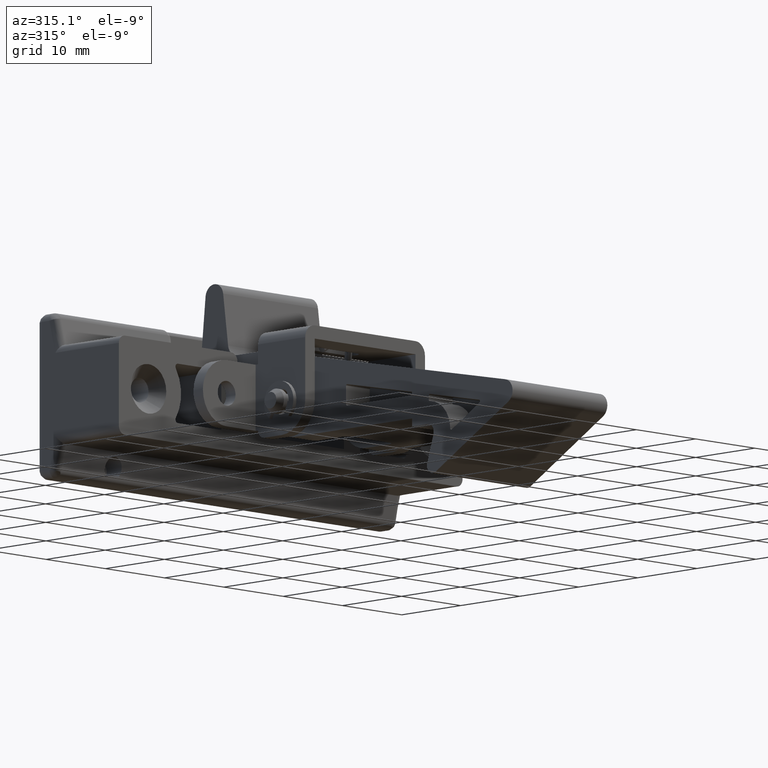
[diagram: clean part render]
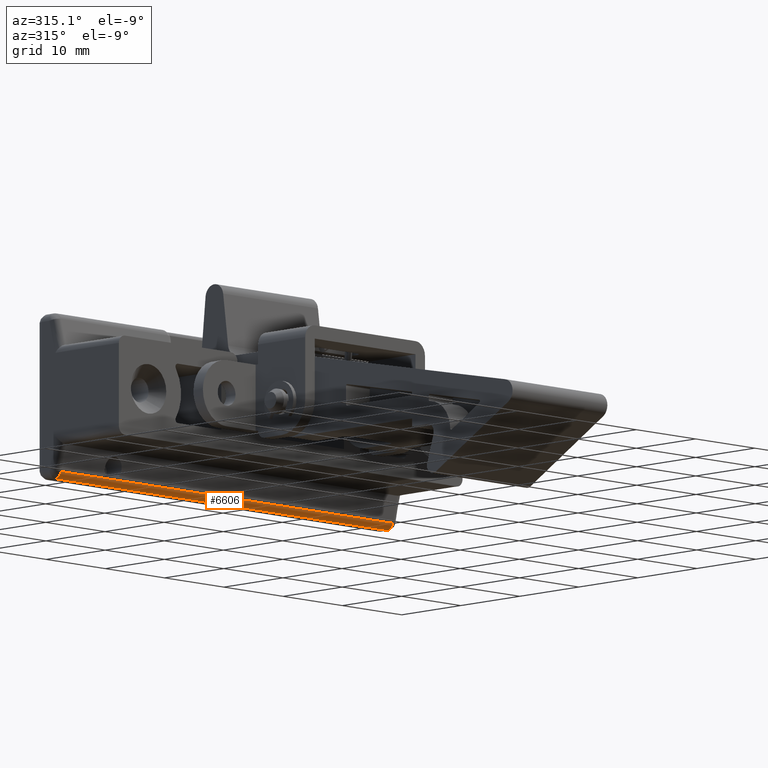
[diagram: same view with one face highlighted and labeled with its STEP entity id]
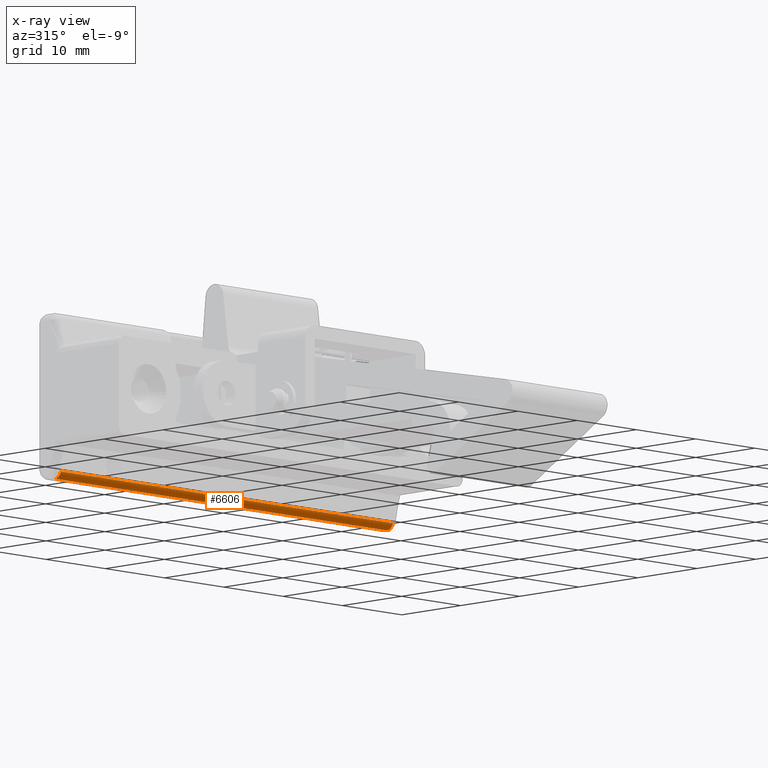
[diagram: x-ray of the same camera — body ghosted, the highlighted face saturated]
A machine part, auxiliary view. The second image highlights one B-rep face of the part: STEP entity #6606.
The next image is the same camera in x-ray: the body ghosted, the highlighted face saturated — about 0% of this face is hidden behind the body in this view.
In plain terms, the highlighted face is a freeform B-spline surface patch.
Its self-contained STEP definition (entity closure, byte-faithful):
#5752=CARTESIAN_POINT('',(28.0,20.380777980867190,-9.0));
#5753=VERTEX_POINT('',#5752);
#5759=CARTESIAN_POINT('',(-28.0,20.380777980867190,-9.0));
#5760=VERTEX_POINT('',#5759);
#5761=CARTESIAN_POINT('',(28.0,20.380777980867190,-9.0));
#5762=CARTESIAN_POINT('',(-28.0,20.380777980867190,-9.0));
#5763=QUASI_UNIFORM_CURVE('',1,(#5761,#5762),.UNSPECIFIED.,.F.,.U.);
#5764=EDGE_CURVE('',#5753,#5760,#5763,.T.);
#6406=CARTESIAN_POINT('',(-28.0,19.410635480721780,-8.242535625036220));
#6407=VERTEX_POINT('',#6406);
#6408=CARTESIAN_POINT('',(-28.0,20.380777980867190,-9.0));
#6409=CARTESIAN_POINT('',(-28.000000000000011,20.228818777914469,-9.000248056203558));
#6410=CARTESIAN_POINT('',(-28.000000000000011,19.966634051690889,-8.939014366621610));
#6411=CARTESIAN_POINT('',(-28.000000000000028,19.704862445812811,-8.751473107571282));
#6412=CARTESIAN_POINT('',(-27.999999999999961,19.517228933167729,-8.529001288167068));
#6413=CARTESIAN_POINT('',(-28.000000000000050,19.440665666647210,-8.363173478599379));
#6414=CARTESIAN_POINT('',(-28.0,19.410635480721780,-8.242535625036220));
#6415=B_SPLINE_CURVE_WITH_KNOTS('',3,(#6408,#6409,#6410,#6411,#6412,#6413,#6414),.UNSPECIFIED.,.F.,.U.,(4,1,1,1,4),(0.000000138258296,0.455795929395192,0.787246037963125,0.952994236450153,1.325912428380653),.UNSPECIFIED.);
#6416=EDGE_CURVE('',#5760,#6407,#6415,.T.);
#6571=CARTESIAN_POINT('',(29.400000000000009,19.408555925034079,-8.234060407056774));
#6572=CARTESIAN_POINT('',(-29.434999999999999,19.408555925034079,-8.234060407056774));
#6573=CARTESIAN_POINT('',(29.400000000000009,19.601500435050308,-9.035498422774289));
#6574=CARTESIAN_POINT('',(-29.434999999999995,19.601500435050308,-9.035498422774289));
#6575=CARTESIAN_POINT('',(29.400000000000009,20.425029325246609,-8.999020429481000));
#6576=CARTESIAN_POINT('',(-29.434999999999999,20.425029325246609,-8.999020429481000));
#6584=(BOUNDED_SURFACE()B_SPLINE_SURFACE(1,2,((#6571,#6573,#6575),(#6572,#6574,#6576)),.UNSPECIFIED.,.F.,.F.,.U.)B_SPLINE_SURFACE_WITH_KNOTS((2,2),(3,3),(0.0,58.835000000000008),(0.0,1.0),.UNSPECIFIED.)GEOMETRIC_REPRESENTATION_ITEM()RATIONAL_B_SPLINE_SURFACE(((1.0,0.771624583387720,1.0),(1.0,0.771624583387720,1.0)))REPRESENTATION_ITEM('')SURFACE());
#6585=CARTESIAN_POINT('',(28.0,19.410635480721780,-8.242535625036220));
#6586=VERTEX_POINT('',#6585);
#6587=CARTESIAN_POINT('',(28.0,20.380777980867190,-9.0));
#6588=CARTESIAN_POINT('',(28.000000000000021,20.270288565046929,-9.000059258242782));
#6589=CARTESIAN_POINT('',(27.999999999999972,20.035529080590170,-8.960730954940249));
#6590=CARTESIAN_POINT('',(28.000000000000110,19.742493880767430,-8.793840488639267));
#6591=CARTESIAN_POINT('',(27.999999999999790,19.521322920312489,-8.542234196718745));
#6592=CARTESIAN_POINT('',(28.000000000000099,19.437369491885800,-8.349748401890269));
#6593=CARTESIAN_POINT('',(28.0,19.410635480721780,-8.242535625036220));
#6594=B_SPLINE_CURVE_WITH_KNOTS('',3,(#6587,#6588,#6589,#6590,#6591,#6592,#6593),.UNSPECIFIED.,.F.,.U.,(4,1,1,1,4),(0.000000138258331,0.331478210789095,0.704384257721447,0.994434355850081,1.325912428380623),.UNSPECIFIED.);
#6595=EDGE_CURVE('',#5753,#6586,#6594,.T.);
#6596=ORIENTED_EDGE('',*,*,#6595,.T.);
#6597=CARTESIAN_POINT('',(-28.0,19.410635480721780,-8.242535625036220));
#6598=CARTESIAN_POINT('',(28.0,19.410635480721780,-8.242535625036220));
#6599=QUASI_UNIFORM_CURVE('',1,(#6597,#6598),.UNSPECIFIED.,.F.,.U.);
#6600=EDGE_CURVE('',#6407,#6586,#6599,.T.);
#6601=ORIENTED_EDGE('',*,*,#6600,.F.);
#6602=ORIENTED_EDGE('',*,*,#6416,.F.);
#6603=ORIENTED_EDGE('',*,*,#5764,.F.);
#6604=EDGE_LOOP('',(#6596,#6601,#6602,#6603));
#6605=FACE_OUTER_BOUND('',#6604,.T.);
#6606=ADVANCED_FACE('',(#6605),#6584,.T.);